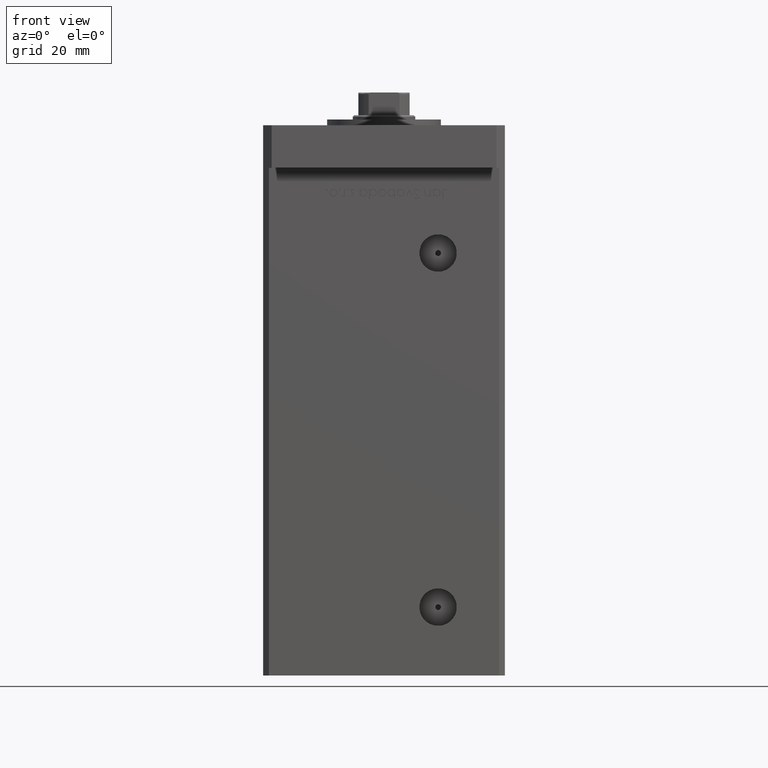
[diagram: clean part render]
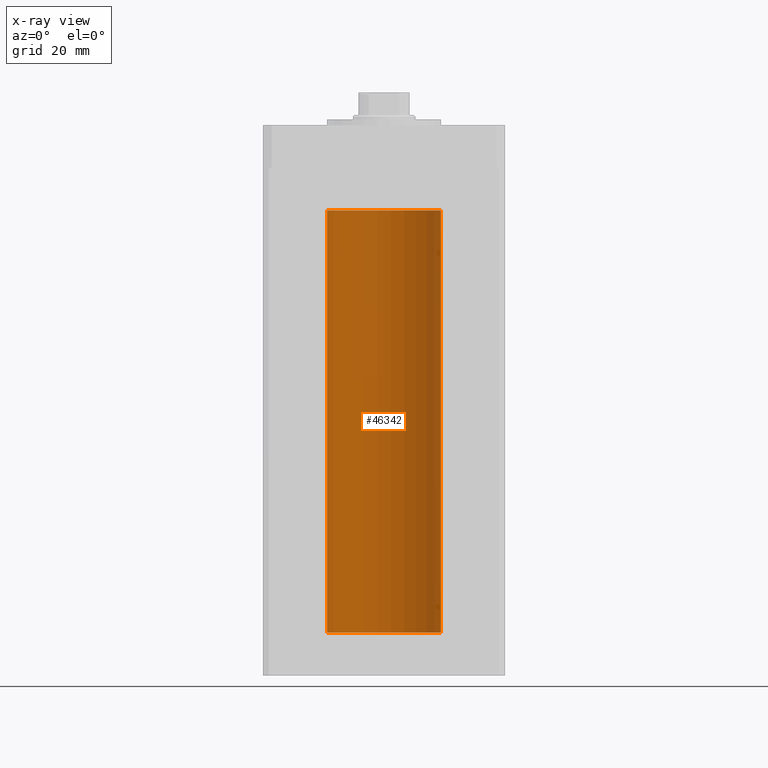
[diagram: x-ray — body ghosted, one internal face saturated and labeled with its STEP entity id]
A machine part, front view, then the same camera in x-ray: the body is ghosted and one INTERNAL B-rep face — a face not visible from any outside direction — is saturated and labeled: STEP entity #46342.
In plain terms, the highlighted cylindrical surface (partial cylindrical patch) has radius 20 mm, axis along (-0, -0, -1).
Its self-contained STEP definition (entity closure, byte-faithful):
#3518 = DIRECTION ( 'NONE',  ( -0.000000000000000000, -0.000000000000000000, -1.000000000000000000 ) ) ;
#4619 = CARTESIAN_POINT ( 'NONE',  ( -20.00000000000000000, 0.000000000000000000, 0.000000000000000000 ) ) ;
#5865 = EDGE_CURVE ( 'NONE', #17159, #28064, #53665, .T. ) ;
#5883 = VERTEX_POINT ( 'NONE', #51748 ) ;
#7585 = EDGE_CURVE ( 'NONE', #5883, #17159, #19604, .T. ) ;
#7764 = CARTESIAN_POINT ( 'NONE',  ( 0.000000000000000000, 0.000000000000000000, 148.5000000000000000 ) ) ;
#8151 = DIRECTION ( 'NONE',  ( -0.000000000000000000, 0.000000000000000000, 1.000000000000000000 ) ) ;
#9193 = AXIS2_PLACEMENT_3D ( 'NONE', #37166, #8151, #49929 ) ;
#11242 = CARTESIAN_POINT ( 'NONE',  ( 0.000000000000000000, 0.000000000000000000, 0.000000000000000000 ) ) ;
#12752 = ORIENTED_EDGE ( 'NONE', *, *, #5865, .T. ) ;
#14956 = VECTOR ( 'NONE', #3518, 1000.000000000000000 ) ;
#15584 = DIRECTION ( 'NONE',  ( -0.000000000000000000, 0.000000000000000000, 1.000000000000000000 ) ) ;
#16065 = CIRCLE ( 'NONE', #46375, 20.00000000000000000 ) ;
#17159 = VERTEX_POINT ( 'NONE', #32360 ) ;
#19249 = EDGE_LOOP ( 'NONE', ( #52405, #46578, #12752, #29027 ) ) ;
#19604 = CIRCLE ( 'NONE', #9193, 20.00000000000000000 ) ;
#20440 = VECTOR ( 'NONE', #50379, 1000.000000000000000 ) ;
#20712 = DIRECTION ( 'NONE',  ( 1.000000000000000000, 0.000000000000000000, 0.000000000000000000 ) ) ;
#21102 = VERTEX_POINT ( 'NONE', #45770 ) ;
#24111 = LINE ( 'NONE', #40663, #14956 ) ;
#28064 = VERTEX_POINT ( 'NONE', #4619 ) ;
#28882 = FACE_OUTER_BOUND ( 'NONE', #19249, .T. ) ;
#29027 = ORIENTED_EDGE ( 'NONE', *, *, #43350, .F. ) ;
#32360 = CARTESIAN_POINT ( 'NONE',  ( -20.00000000000000000, 0.000000000000000000, 148.5000000000000000 ) ) ;
#33818 = CARTESIAN_POINT ( 'NONE',  ( -20.00000000000000000, 0.000000000000000000, 148.5000000000000000 ) ) ;
#35739 = EDGE_CURVE ( 'NONE', #5883, #21102, #24111, .T. ) ;
#36503 = CYLINDRICAL_SURFACE ( 'NONE', #41137, 20.00000000000000000 ) ;
#37166 = CARTESIAN_POINT ( 'NONE',  ( 0.000000000000000000, 0.000000000000000000, 148.5000000000000000 ) ) ;
#40663 = CARTESIAN_POINT ( 'NONE',  ( 20.00000000000000000, 2.449293598294706513E-15, 148.5000000000000000 ) ) ;
#41137 = AXIS2_PLACEMENT_3D ( 'NONE', #7764, #49002, #52817 ) ;
#43350 = EDGE_CURVE ( 'NONE', #21102, #28064, #16065, .T. ) ;
#45770 = CARTESIAN_POINT ( 'NONE',  ( 20.00000000000000000, 2.449293598294706513E-15, 0.000000000000000000 ) ) ;
#46342 = ADVANCED_FACE ( 'NONE', ( #28882 ), #36503, .F. ) ;
#46375 = AXIS2_PLACEMENT_3D ( 'NONE', #11242, #15584, #20712 ) ;
#46578 = ORIENTED_EDGE ( 'NONE', *, *, #7585, .T. ) ;
#49002 = DIRECTION ( 'NONE',  ( -0.000000000000000000, -0.000000000000000000, -1.000000000000000000 ) ) ;
#49929 = DIRECTION ( 'NONE',  ( 1.000000000000000000, 0.000000000000000000, 0.000000000000000000 ) ) ;
#50379 = DIRECTION ( 'NONE',  ( -0.000000000000000000, -0.000000000000000000, -1.000000000000000000 ) ) ;
#51748 = CARTESIAN_POINT ( 'NONE',  ( 20.00000000000000000, 2.449293598294706513E-15, 148.5000000000000000 ) ) ;
#52405 = ORIENTED_EDGE ( 'NONE', *, *, #35739, .F. ) ;
#52817 = DIRECTION ( 'NONE',  ( -1.000000000000000000, 0.000000000000000000, 0.000000000000000000 ) ) ;
#53665 = LINE ( 'NONE', #33818, #20440 ) ;